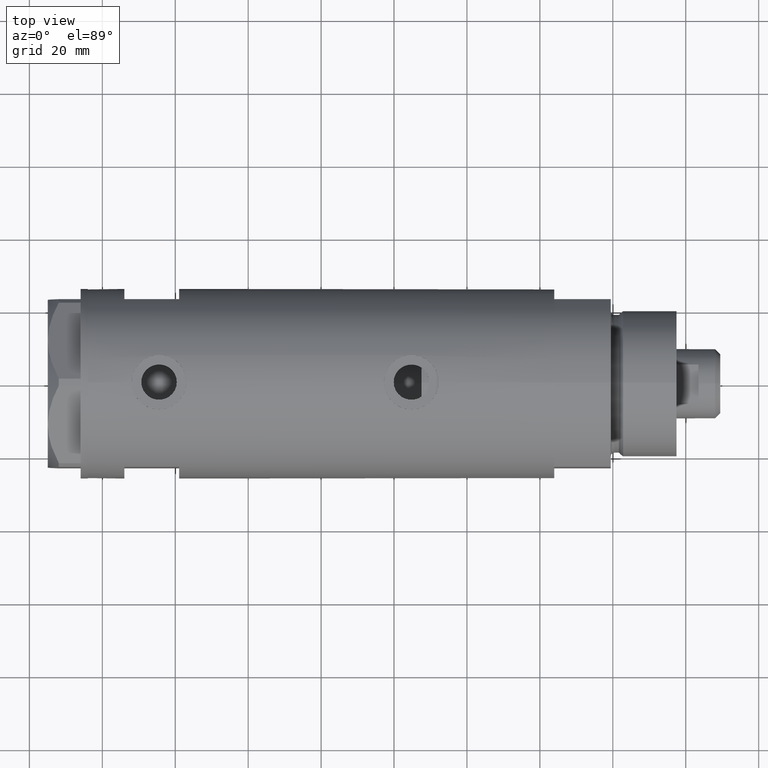
[diagram: clean part render]
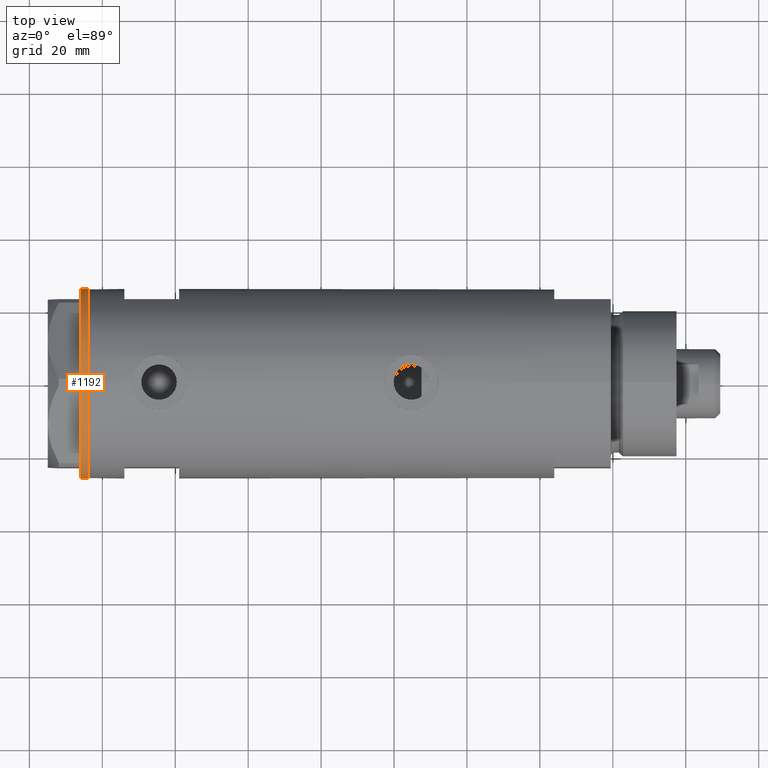
[diagram: same view with one face highlighted and labeled with its STEP entity id]
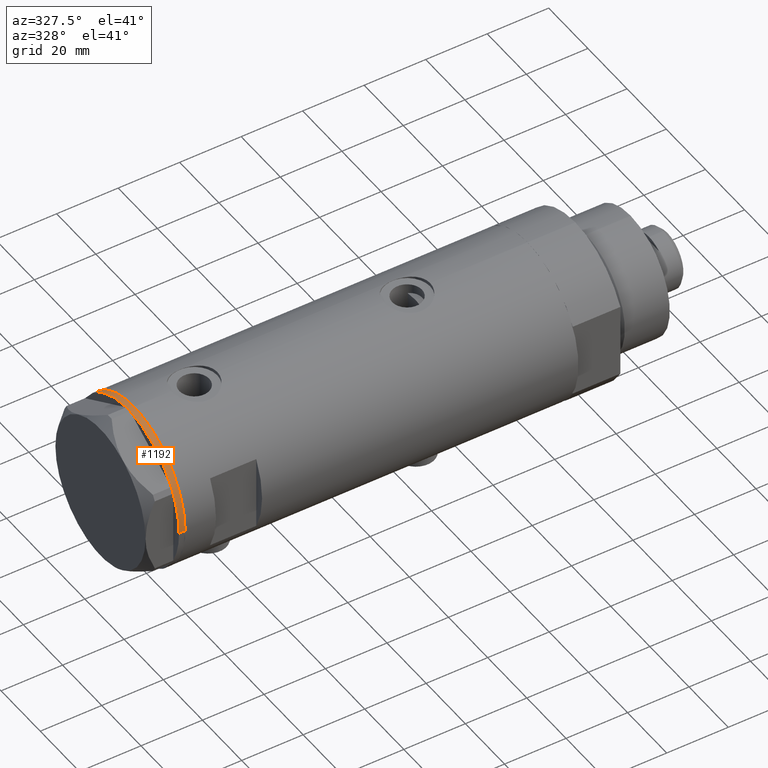
[diagram: same view with one face highlighted and labeled with its STEP entity id]
A machine part, top view. The second image highlights one B-rep face of the part: STEP entity #1192.
A second angle (auxiliary view) of the same face is appended — the face is thin or edge-on in the first view.
In plain terms, the highlighted cylindrical surface (partial cylindrical patch) has radius 26 mm, axis along (-1, -0, 0).
Its self-contained STEP definition (entity closure, byte-faithful):
#26 = CARTESIAN_POINT ( 'NONE',  ( -22.35837924876856064, -13.27037593168466501, 0.000000000000000000 ) ) ;
#66 = EDGE_CURVE ( 'NONE', #2728, #4635, #1874, .T. ) ;
#131 = VERTEX_POINT ( 'NONE', #4055 ) ;
#135 = CARTESIAN_POINT ( 'NONE',  ( 0.000000000000000000, 0.000000000000000000, 0.000000000000000000 ) ) ;
#166 = DIRECTION ( 'NONE',  ( 0.000000000000000000, 0.000000000000000000, -1.000000000000000000 ) ) ;
#168 = DIRECTION ( 'NONE',  ( -1.000000000000000000, 0.000000000000000000, 0.000000000000000000 ) ) ;
#200 = B_SPLINE_CURVE_WITH_KNOTS ( 'NONE', 3,
 ( #26, #1104, #2713, #4313 ),
 .UNSPECIFIED., .F., .F.,
 ( 4, 4 ),
 ( 0.000000000000000000, 1.000000000000000000 ),
 .UNSPECIFIED. ) ;
#205 = CIRCLE ( 'NONE', #785, 26.00000000000000355 ) ;
#214 = DIRECTION ( 'NONE',  ( 0.000000000000000000, 0.000000000000000000, -1.000000000000000000 ) ) ;
#273 = DIRECTION ( 'NONE',  ( -1.000000000000000000, 0.000000000000000000, 0.000000000000000000 ) ) ;
#300 = AXIS2_PLACEMENT_3D ( 'NONE', #2210, #2663, #1859 ) ;
#327 = CARTESIAN_POINT ( 'NONE',  ( 0.000000000000000000, 0.000000000000000000, -2.000000000000000000 ) ) ;
#336 = EDGE_LOOP ( 'NONE', ( #2837, #4696, #2177, #989, #2669, #461, #3259, #3477, #4127, #4123, #730, #4390, #1225, #4443, #943, #3733 ) ) ;
#377 = EDGE_CURVE ( 'NONE', #4434, #4635, #1968, .T. ) ;
#412 = DIRECTION ( 'NONE',  ( -0.000000000000000000, -0.000000000000000000, 1.000000000000000000 ) ) ;
#443 = VERTEX_POINT ( 'NONE', #2343 ) ;
#461 = ORIENTED_EDGE ( 'NONE', *, *, #5060, .T. ) ;
#516 = DIRECTION ( 'NONE',  ( -1.000000000000000000, 0.000000000000000000, 0.000000000000000000 ) ) ;
#577 = CARTESIAN_POINT ( 'NONE',  ( -0.3132930502238524539, -25.99811238272274139, 0.000000000000000000 ) ) ;
#661 = CARTESIAN_POINT ( 'NONE',  ( -26.00000000000000355, 3.184081677783118585E-15, -2.000000000000000000 ) ) ;
#669 = CARTESIAN_POINT ( 'NONE',  ( 0.000000000000000000, 0.000000000000000000, 0.000000000000000000 ) ) ;
#708 = DIRECTION ( 'NONE',  ( -1.000000000000000000, 0.000000000000000000, 0.000000000000000000 ) ) ;
#720 = CARTESIAN_POINT ( 'NONE',  ( 0.000000000000000000, 0.000000000000000000, 0.000000000000000000 ) ) ;
#730 = ORIENTED_EDGE ( 'NONE', *, *, #747, .T. ) ;
#747 = EDGE_CURVE ( 'NONE', #4652, #1909, #4324, .T. ) ;
#785 = AXIS2_PLACEMENT_3D ( 'NONE', #2630, #2233, #708 ) ;
#797 = CIRCLE ( 'NONE', #5073, 26.00000000000000355 ) ;
#847 = FACE_OUTER_BOUND ( 'NONE', #336, .T. ) ;
#859 = AXIS2_PLACEMENT_3D ( 'NONE', #327, #412, #1571 ) ;
#869 = VERTEX_POINT ( 'NONE', #3491 ) ;
#903 = CARTESIAN_POINT ( 'NONE',  ( 23.00000000000007461, -12.12435565298200224, 0.000000000000000000 ) ) ;
#932 = CARTESIAN_POINT ( 'NONE',  ( -26.00000000000000355, 3.184081677783118585E-15, -2.000000000000000000 ) ) ;
#943 = ORIENTED_EDGE ( 'NONE', *, *, #4997, .T. ) ;
#989 = ORIENTED_EDGE ( 'NONE', *, *, #4166, .T. ) ;
#993 = VERTEX_POINT ( 'NONE', #5034 ) ;
#1050 = CARTESIAN_POINT ( 'NONE',  ( 0.3132930502243174709, -25.99811238272273428, 0.000000000000000000 ) ) ;
#1054 = AXIS2_PLACEMENT_3D ( 'NONE', #669, #1199, #3227 ) ;
#1104 = CARTESIAN_POINT ( 'NONE',  ( -22.46498481720448481, -13.09076325594801915, 0.000000000000000000 ) ) ;
#1192 = ADVANCED_FACE ( 'NONE', ( #847 ), #2023, .T. ) ;
#1199 = DIRECTION ( 'NONE',  ( 0.000000000000000000, 0.000000000000000000, -1.000000000000000000 ) ) ;
#1203 = CIRCLE ( 'NONE', #4479, 26.00000000000000355 ) ;
#1225 = ORIENTED_EDGE ( 'NONE', *, *, #2826, .T. ) ;
#1327 = VERTEX_POINT ( 'NONE', #903 ) ;
#1343 = CARTESIAN_POINT ( 'NONE',  ( 22.46498481720470863, -13.09076325594764079, 0.000000000000000000 ) ) ;
#1376 = DIRECTION ( 'NONE',  ( -1.000000000000000000, 0.000000000000000000, 0.000000000000000000 ) ) ;
#1431 = CARTESIAN_POINT ( 'NONE',  ( 26.00000000000000355, 0.000000000000000000, -2.000000000000000000 ) ) ;
#1462 = CARTESIAN_POINT ( 'NONE',  ( 0.1044411259767168837, -26.00062917530480888, 0.000000000000000000 ) ) ;
#1476 = DIRECTION ( 'NONE',  ( -0.000000000000000000, -0.000000000000000000, 1.000000000000000000 ) ) ;
#1517 = CARTESIAN_POINT ( 'NONE',  ( -22.99999999999990763, -12.12435565298232021, 0.000000000000000000 ) ) ;
#1569 = EDGE_CURVE ( 'NONE', #5019, #131, #2635, .T. ) ;
#1571 = DIRECTION ( 'NONE',  ( 1.000000000000000000, 0.000000000000000000, 0.000000000000000000 ) ) ;
#1603 = EDGE_CURVE ( 'NONE', #131, #4648, #3810, .T. ) ;
#1627 = CIRCLE ( 'NONE', #4582, 26.00000000000000355 ) ;
#1636 = CIRCLE ( 'NONE', #3999, 26.00000000000000355 ) ;
#1702 = DIRECTION ( 'NONE',  ( -1.000000000000000000, 0.000000000000000000, 0.000000000000000000 ) ) ;
#1859 = DIRECTION ( 'NONE',  ( -1.000000000000000000, 0.000000000000000000, 0.000000000000000000 ) ) ;
#1874 = LINE ( 'NONE', #661, #3945 ) ;
#1880 = DIRECTION ( 'NONE',  ( -1.000000000000000000, 0.000000000000000000, 0.000000000000000000 ) ) ;
#1909 = VERTEX_POINT ( 'NONE', #3730 ) ;
#1932 = DIRECTION ( 'NONE',  ( -1.000000000000000000, 0.000000000000000000, 0.000000000000000000 ) ) ;
#1968 = CIRCLE ( 'NONE', #3488, 26.00000000000000355 ) ;
#1992 = VERTEX_POINT ( 'NONE', #2657 ) ;
#2023 = CYLINDRICAL_SURFACE ( 'NONE', #859, 26.00000000000000355 ) ;
#2033 = AXIS2_PLACEMENT_3D ( 'NONE', #3705, #2077, #1702 ) ;
#2048 = VERTEX_POINT ( 'NONE', #4692 ) ;
#2054 = AXIS2_PLACEMENT_3D ( 'NONE', #3813, #214, #1880 ) ;
#2065 = EDGE_CURVE ( 'NONE', #1327, #2633, #205, .T. ) ;
#2077 = DIRECTION ( 'NONE',  ( 0.000000000000000000, 0.000000000000000000, -1.000000000000000000 ) ) ;
#2113 = DIRECTION ( 'NONE',  ( 0.000000000000000000, 0.000000000000000000, -1.000000000000000000 ) ) ;
#2165 = CARTESIAN_POINT ( 'NONE',  ( 22.67167229899274616, -12.72773645103814211, 0.000000000000000000 ) ) ;
#2177 = ORIENTED_EDGE ( 'NONE', *, *, #3670, .T. ) ;
#2190 = DIRECTION ( 'NONE',  ( 0.000000000000000000, 0.000000000000000000, -1.000000000000000000 ) ) ;
#2210 = CARTESIAN_POINT ( 'NONE',  ( 0.000000000000000000, 0.000000000000000000, 0.000000000000000000 ) ) ;
#2233 = DIRECTION ( 'NONE',  ( 0.000000000000000000, 0.000000000000000000, -1.000000000000000000 ) ) ;
#2273 = B_SPLINE_CURVE_WITH_KNOTS ( 'NONE', 3,
 ( #1050, #1462, #5024, #2307 ),
 .UNSPECIFIED., .F., .F.,
 ( 4, 4 ),
 ( 0.000000000000000000, 1.000000000000000000 ),
 .UNSPECIFIED. ) ;
#2290 = DIRECTION ( 'NONE',  ( 0.000000000000000000, 0.000000000000000000, -1.000000000000000000 ) ) ;
#2307 = CARTESIAN_POINT ( 'NONE',  ( -0.3132930502238524539, -25.99811238272274139, 0.000000000000000000 ) ) ;
#2343 = CARTESIAN_POINT ( 'NONE',  ( -22.67167229899264669, -12.72773645103832507, 0.000000000000000000 ) ) ;
#2357 = CARTESIAN_POINT ( 'NONE',  ( 0.000000000000000000, 0.000000000000000000, 0.000000000000000000 ) ) ;
#2630 = CARTESIAN_POINT ( 'NONE',  ( 0.000000000000000000, 0.000000000000000000, 0.000000000000000000 ) ) ;
#2633 = VERTEX_POINT ( 'NONE', #4370 ) ;
#2635 = CIRCLE ( 'NONE', #2033, 26.00000000000000355 ) ;
#2657 = CARTESIAN_POINT ( 'NONE',  ( 26.00000000000000355, 0.000000000000000000, -2.000000000000000000 ) ) ;
#2663 = DIRECTION ( 'NONE',  ( 0.000000000000000000, 0.000000000000000000, -1.000000000000000000 ) ) ;
#2669 = ORIENTED_EDGE ( 'NONE', *, *, #2065, .T. ) ;
#2713 = CARTESIAN_POINT ( 'NONE',  ( -22.56942594318098116, -12.90986591935703665, 0.000000000000000000 ) ) ;
#2728 = VERTEX_POINT ( 'NONE', #932 ) ;
#2826 = EDGE_CURVE ( 'NONE', #869, #4285, #1203, .T. ) ;
#2837 = ORIENTED_EDGE ( 'NONE', *, *, #66, .F. ) ;
#3022 = DIRECTION ( 'NONE',  ( 0.000000000000000000, 0.000000000000000000, -1.000000000000000000 ) ) ;
#3066 = VECTOR ( 'NONE', #4642, 1000.000000000000000 ) ;
#3162 = EDGE_CURVE ( 'NONE', #4285, #443, #200, .T. ) ;
#3227 = DIRECTION ( 'NONE',  ( -1.000000000000000000, 0.000000000000000000, 0.000000000000000000 ) ) ;
#3234 = CIRCLE ( 'NONE', #1054, 26.00000000000000355 ) ;
#3259 = ORIENTED_EDGE ( 'NONE', *, *, #4133, .T. ) ;
#3389 = DIRECTION ( 'NONE',  ( -1.000000000000000000, 0.000000000000000000, 0.000000000000000000 ) ) ;
#3466 = B_SPLINE_CURVE_WITH_KNOTS ( 'NONE', 3,
 ( #2165, #4191, #1343, #4523 ),
 .UNSPECIFIED., .F., .F.,
 ( 4, 4 ),
 ( 0.000000000000000000, 1.000000000000000000 ),
 .UNSPECIFIED. ) ;
#3477 = ORIENTED_EDGE ( 'NONE', *, *, #1569, .T. ) ;
#3488 = AXIS2_PLACEMENT_3D ( 'NONE', #720, #2290, #273 ) ;
#3491 = CARTESIAN_POINT ( 'NONE',  ( -21.99999999999998224, -13.85640646055105485, 0.000000000000000000 ) ) ;
#3620 = EDGE_CURVE ( 'NONE', #1992, #2728, #797, .T. ) ;
#3670 = EDGE_CURVE ( 'NONE', #1992, #2048, #4227, .T. ) ;
#3705 = CARTESIAN_POINT ( 'NONE',  ( 0.000000000000000000, 0.000000000000000000, 0.000000000000000000 ) ) ;
#3730 = CARTESIAN_POINT ( 'NONE',  ( -0.9999999999997406519, -25.98076211353317433, 0.000000000000000000 ) ) ;
#3733 = ORIENTED_EDGE ( 'NONE', *, *, #377, .T. ) ;
#3744 = CARTESIAN_POINT ( 'NONE',  ( -26.00000000000000355, 3.184081677783118585E-15, 0.000000000000000000 ) ) ;
#3767 = CARTESIAN_POINT ( 'NONE',  ( 0.000000000000000000, 0.000000000000000000, 0.000000000000000000 ) ) ;
#3810 = CIRCLE ( 'NONE', #4981, 26.00000000000000355 ) ;
#3813 = CARTESIAN_POINT ( 'NONE',  ( 0.000000000000000000, 0.000000000000000000, 0.000000000000000000 ) ) ;
#3933 = DIRECTION ( 'NONE',  ( 0.000000000000000000, 0.000000000000000000, -1.000000000000000000 ) ) ;
#3945 = VECTOR ( 'NONE', #1476, 1000.000000000000000 ) ;
#3989 = CIRCLE ( 'NONE', #300, 26.00000000000000355 ) ;
#3999 = AXIS2_PLACEMENT_3D ( 'NONE', #3767, #2190, #168 ) ;
#4055 = CARTESIAN_POINT ( 'NONE',  ( 1.000000000000106803, -25.98076211353316367, 0.000000000000000000 ) ) ;
#4123 = ORIENTED_EDGE ( 'NONE', *, *, #5178, .T. ) ;
#4125 = EDGE_CURVE ( 'NONE', #1909, #869, #3989, .T. ) ;
#4127 = ORIENTED_EDGE ( 'NONE', *, *, #1603, .T. ) ;
#4133 = EDGE_CURVE ( 'NONE', #993, #5019, #3234, .T. ) ;
#4140 = CARTESIAN_POINT ( 'NONE',  ( 0.000000000000000000, 0.000000000000000000, 0.000000000000000000 ) ) ;
#4166 = EDGE_CURVE ( 'NONE', #2048, #1327, #1627, .T. ) ;
#4191 = CARTESIAN_POINT ( 'NONE',  ( 22.56942594318113748, -12.90986591935675065, 0.000000000000000000 ) ) ;
#4227 = LINE ( 'NONE', #1431, #3066 ) ;
#4285 = VERTEX_POINT ( 'NONE', #5167 ) ;
#4313 = CARTESIAN_POINT ( 'NONE',  ( -22.67167229899264669, -12.72773645103832507, 0.000000000000000000 ) ) ;
#4324 = CIRCLE ( 'NONE', #2054, 26.00000000000000355 ) ;
#4370 = CARTESIAN_POINT ( 'NONE',  ( 22.67167229899274616, -12.72773645103814211, 0.000000000000000000 ) ) ;
#4390 = ORIENTED_EDGE ( 'NONE', *, *, #4125, .T. ) ;
#4434 = VERTEX_POINT ( 'NONE', #1517 ) ;
#4443 = ORIENTED_EDGE ( 'NONE', *, *, #3162, .T. ) ;
#4479 = AXIS2_PLACEMENT_3D ( 'NONE', #4140, #2113, #1376 ) ;
#4523 = CARTESIAN_POINT ( 'NONE',  ( 22.35837924876884131, -13.27037593168418717, 0.000000000000000000 ) ) ;
#4528 = CARTESIAN_POINT ( 'NONE',  ( 0.3132930502243174709, -25.99811238272273428, 0.000000000000000000 ) ) ;
#4582 = AXIS2_PLACEMENT_3D ( 'NONE', #2357, #3933, #1932 ) ;
#4606 = CARTESIAN_POINT ( 'NONE',  ( 22.00000000000017053, -13.85640646055075464, 0.000000000000000000 ) ) ;
#4635 = VERTEX_POINT ( 'NONE', #3744 ) ;
#4642 = DIRECTION ( 'NONE',  ( -0.000000000000000000, -0.000000000000000000, 1.000000000000000000 ) ) ;
#4648 = VERTEX_POINT ( 'NONE', #4528 ) ;
#4652 = VERTEX_POINT ( 'NONE', #577 ) ;
#4692 = CARTESIAN_POINT ( 'NONE',  ( 26.00000000000000355, 0.000000000000000000, 0.000000000000000000 ) ) ;
#4696 = ORIENTED_EDGE ( 'NONE', *, *, #3620, .F. ) ;
#4902 = CARTESIAN_POINT ( 'NONE',  ( 0.000000000000000000, 0.000000000000000000, -2.000000000000000000 ) ) ;
#4981 = AXIS2_PLACEMENT_3D ( 'NONE', #135, #166, #516 ) ;
#4997 = EDGE_CURVE ( 'NONE', #443, #4434, #1636, .T. ) ;
#5019 = VERTEX_POINT ( 'NONE', #4606 ) ;
#5024 = CARTESIAN_POINT ( 'NONE',  ( -0.1044411259762646482, -26.00062917530481243, 0.000000000000000000 ) ) ;
#5034 = CARTESIAN_POINT ( 'NONE',  ( 22.35837924876884131, -13.27037593168418717, 0.000000000000000000 ) ) ;
#5060 = EDGE_CURVE ( 'NONE', #2633, #993, #3466, .T. ) ;
#5073 = AXIS2_PLACEMENT_3D ( 'NONE', #4902, #3022, #3389 ) ;
#5167 = CARTESIAN_POINT ( 'NONE',  ( -22.35837924876856064, -13.27037593168466501, 0.000000000000000000 ) ) ;
#5178 = EDGE_CURVE ( 'NONE', #4648, #4652, #2273, .T. ) ;